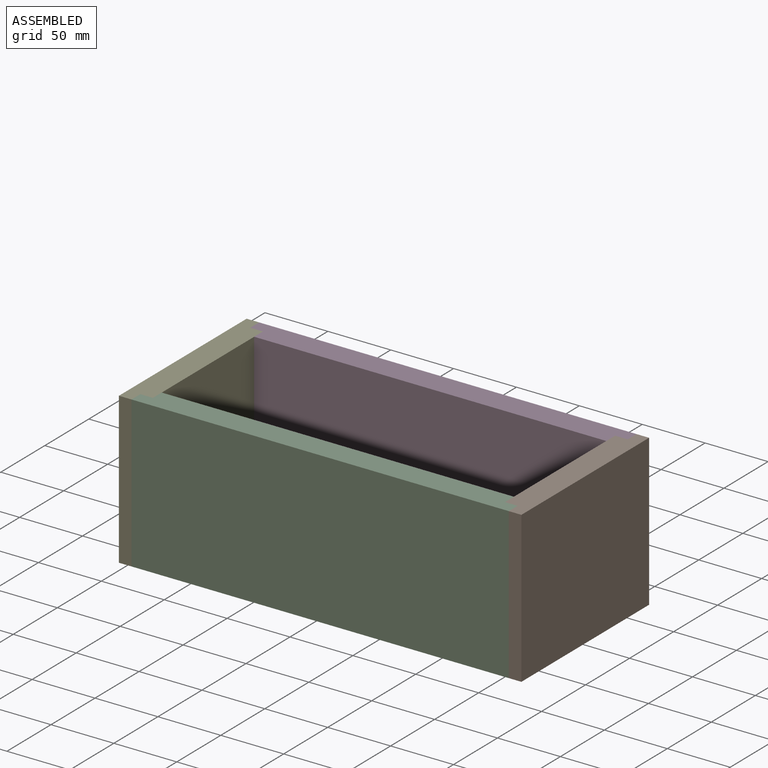
[diagram: assembled view]
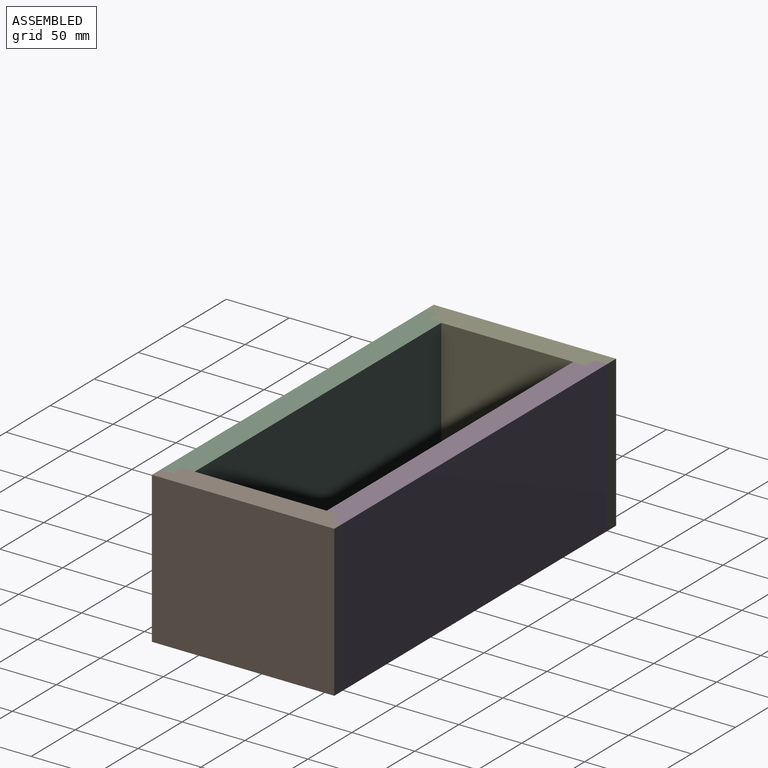
[diagram: assembled view, second angle]
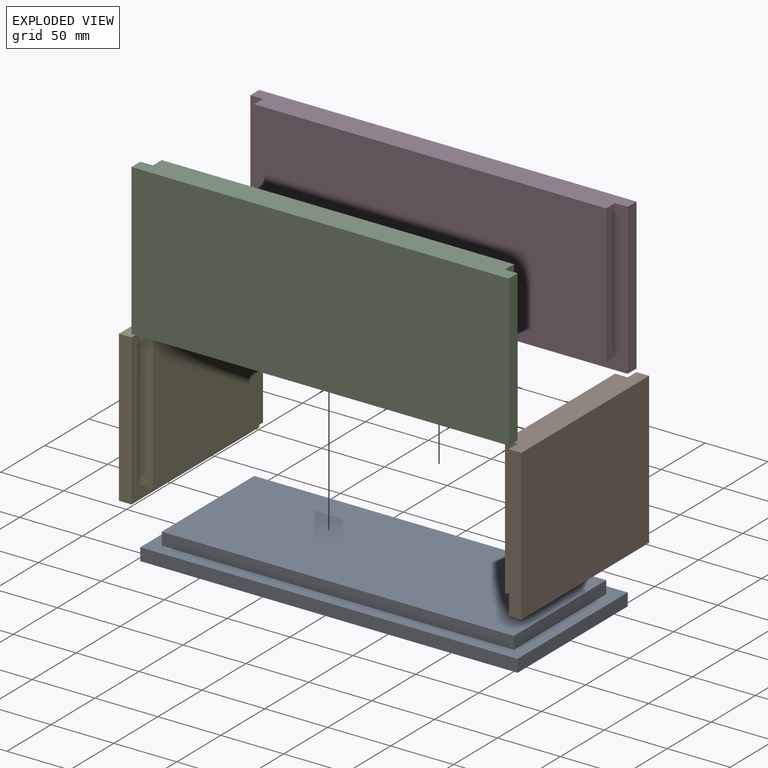
[diagram: exploded view]
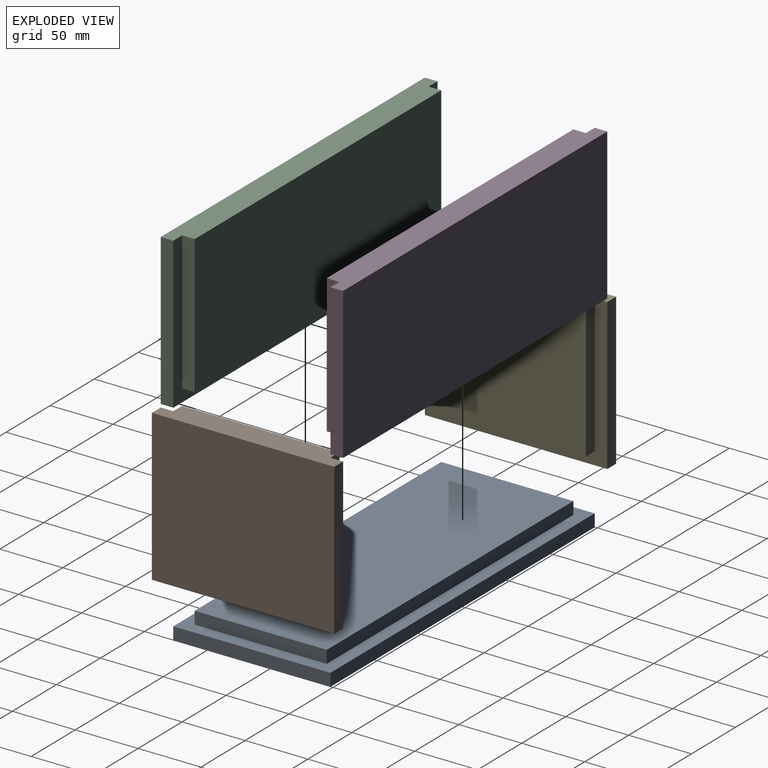
[diagram: exploded view, second angle]
ASSEMBLY  parts=5 mates=12
PART A: 11 faces, bbox 300x125x20 mm
  f0: plane 300x10mm, normal (0,1,0), area 3000mm2, adj f1,f3,f4,f9
  f1: plane 125x10mm, normal (-1,0,0), area 1250mm2, adj f0,f2,f4,f9
  f2: plane 300x10mm, normal (0,-1,0), area 3000mm2, adj f1,f3,f4,f9
  f3: plane 125x10mm, normal (1,0,0), area 1250mm2, adj f0,f2,f4,f9
  f4: plane 300x125mm, normal (0,0,-1), area 37500mm2, adj f0,f1,f2,f3
  f5: plane 280x10mm, normal (0,1,0), area 2800mm2, adj f6,f8,f9,f10
  f6: plane 105x10mm, normal (1,0,0), area 1050mm2, adj f5,f7,f9,f10
  f7: plane 280x10mm, normal (0,-1,0), area 2800mm2, adj f6,f8,f9,f10
  f8: plane 105x10mm, normal (-1,0,0), area 1050mm2, adj f5,f7,f9,f10
  f9: plane 300x125mm, normal (0,0,1), area 8100mm2, adj f0,f1,f2,f3,f5,f6,f7,f8
  f10: plane 280x105mm, normal (0,0,1), area 29400mm2, adj f5,f6,f7,f8
PART B: 10 faces, bbox 145x120x20 mm
  f0: plane 120x10mm, normal (1,0,0), area 1200mm2, adj f2,f3,f5,f9
  f1: plane 120x10mm, normal (-1,0,0), area 1200mm2, adj f2,f3,f5,f9
  f2: plane 145x10mm, normal (0,-1,0), area 1450mm2, adj f0,f1,f5,f9
  f3: plane 145x20mm, normal (0,1,0), area 2700mm2, adj f0,f1,f4,f5,f6,f7,f9
  f4: plane 125x110mm, normal (0,0,1), area 13750mm2, adj f3,f6,f7,f8
  f5: plane 145x120mm, normal (0,0,-1), area 17400mm2, adj f0,f1,f2,f3
  f6: plane 110x10mm, normal (-1,0,0), area 1100mm2, adj f3,f4,f8,f9
  f7: plane 110x10mm, normal (1,0,0), area 1100mm2, adj f3,f4,f8,f9
  f8: plane 125x10mm, normal (0,-1,0), area 1250mm2, adj f4,f6,f7,f9
  f9: plane 145x120mm, normal (0,0,1), area 3650mm2, adj f0,f1,f2,f3,f6,f7,f8
PART C: 10 faces, bbox 300x120x20 mm
  f0: plane 120x10mm, normal (1,0,0), area 1200mm2, adj f2,f3,f5,f9
  f1: plane 120x10mm, normal (-1,0,0), area 1200mm2, adj f2,f3,f5,f9
  f2: plane 300x10mm, normal (0,-1,0), area 3000mm2, adj f0,f1,f5,f9
  f3: plane 300x20mm, normal (0,1,0), area 5800mm2, adj f0,f1,f4,f5,f6,f8,f9
  f4: plane 280x110mm, normal (0,0,1), area 30800mm2, adj f3,f6,f7,f8
  f5: plane 300x120mm, normal (0,0,-1), area 36000mm2, adj f0,f1,f2,f3
  f6: plane 110x10mm, normal (1,0,0), area 1100mm2, adj f3,f4,f7,f9
  f7: plane 280x10mm, normal (0,-1,0), area 2800mm2, adj f4,f6,f8,f9
  f8: plane 110x10mm, normal (-1,0,0), area 1100mm2, adj f3,f4,f7,f9
  f9: plane 300x120mm, normal (0,0,1), area 5200mm2, adj f0,f1,f2,f3,f6,f7,f8
PART D: same geometry as C
PART E: same geometry as B
PLACE A at identity fixed
PLACE B rot(axis=(0.58,-0.58,-0.58),120deg) t=(270,42.5,60)mm
PLACE C rot(axis=(0,0.71,0.71),180deg) t=(110,-30,60)mm
PLACE D rot(axis=(1,0,0),90deg) t=(110,115,60)mm
PLACE E rot(axis=(0.58,0.58,0.58),120deg) t=(-50,42.5,60)mm
MATE planar B.f9 <-> C.f1  axis (-1,0,0) through (260,-20,65)mm
MATE planar E.f2 <-> A.f4  axis (0,0,-1) through (-45,42.5,0)mm
MATE planar E.f9 <-> C.f0  axis (1,0,0) through (-40,-30,60)mm
MATE planar C.f2 <-> A.f4  axis (0,0,-1) through (110,-25,0)mm
MATE planar D.f2 <-> A.f4  axis (0,0,-1) through (110,110,0)mm
MATE planar B.f0 <-> C.f5  axis (0,-1,0) through (265,-30,60)mm
MATE planar E.f1 <-> C.f5  axis (0,-1,0) through (-45,-30,60)mm
MATE planar C.f1 <-> A.f3  axis (1,0,0) through (260,-25,60)mm
MATE planar D.f0 <-> A.f3  axis (1,0,0) through (260,110,60)mm
MATE planar D.f9 <-> A.f0  axis (0,-1,0) through (110,105,30.38)mm
MATE planar C.f4 <-> A.f7  axis (0,1,0) through (110,-10,65)mm
MATE planar B.f2 <-> A.f4  axis (0,0,-1) through (265,42.5,0)mm
